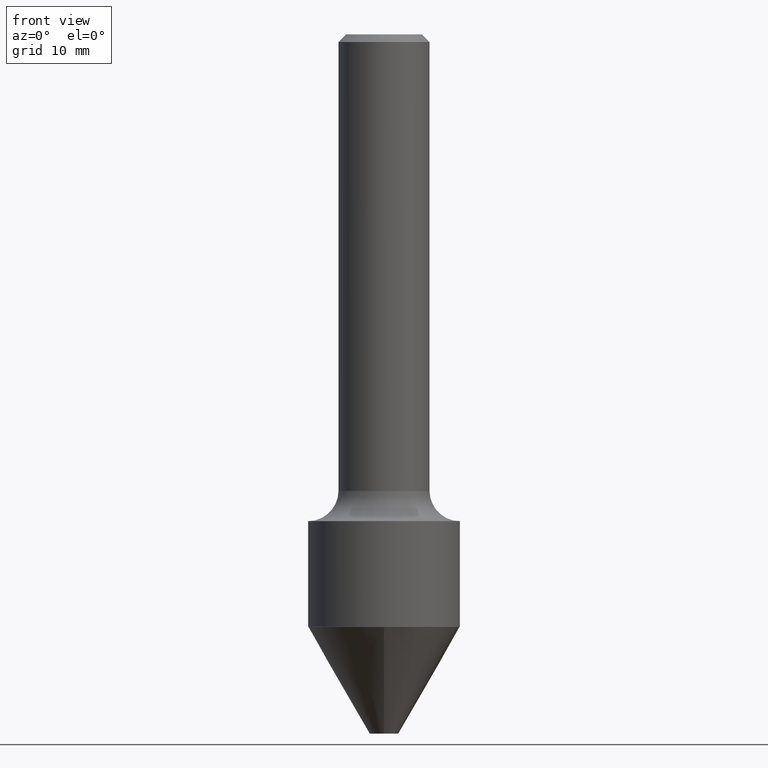
[diagram: clean part render]
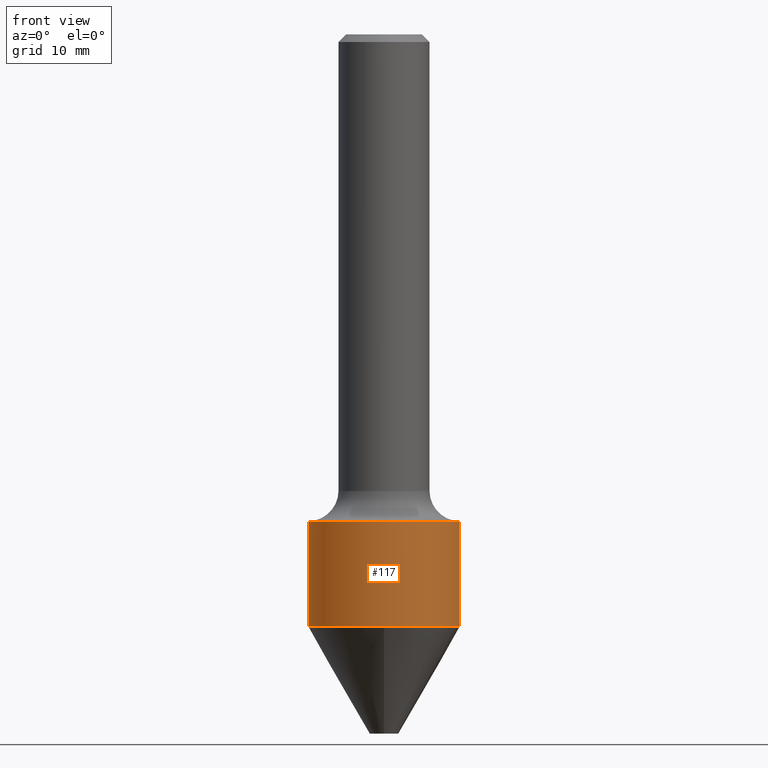
[diagram: same view with one face highlighted and labeled with its STEP entity id]
A machine part, front view. The second image highlights one B-rep face of the part: STEP entity #117.
In plain terms, the highlighted cylindrical surface (partial cylindrical patch) has radius 7.9375 mm, axis along (-0, 0, 1).
Its self-contained STEP definition (entity closure, byte-faithful):
#11 = EDGE_LOOP ( 'NONE', ( #323, #367, #172, #216 ) ) ;
#20 = VECTOR ( 'NONE', #169, 39.37007874015748143 ) ;
#23 = CARTESIAN_POINT ( 'NONE',  ( 0.000000000000000000, 0.000000000000000000, 0.000000000000000000 ) ) ;
#64 = DIRECTION ( 'NONE',  ( -2.445468806185136597E-29, 3.491481338843145583E-15, 1.000000000000000000 ) ) ;
#75 = AXIS2_PLACEMENT_3D ( 'NONE', #23, #182, #137 ) ;
#106 = DIRECTION ( 'NONE',  ( 1.000000000000000000, -6.982962677686265133E-15, 0.000000000000000000 ) ) ;
#108 = DIRECTION ( 'NONE',  ( -2.445468806185136597E-29, 3.491481338843145583E-15, 1.000000000000000000 ) ) ;
#112 = EDGE_CURVE ( 'NONE', #398, #362, #343, .T. ) ;
#117 = ADVANCED_FACE ( 'NONE', ( #378 ), #418, .T. ) ;
#120 = CARTESIAN_POINT ( 'NONE',  ( 0.3125000000000000000, -1.070112886241384003E-14, -2.439925120281329907 ) ) ;
#133 = AXIS2_PLACEMENT_3D ( 'NONE', #150, #64, #381 ) ;
#137 = DIRECTION ( 'NONE',  ( 1.000000000000000000, -6.982962677686266711E-15, 4.876176775795936353E-29 ) ) ;
#150 = CARTESIAN_POINT ( 'NONE',  ( 4.903164956401198966E-29, -7.000420084380507779E-15, -2.004999999999999893 ) ) ;
#163 = CARTESIAN_POINT ( 'NONE',  ( -0.3125000000000000000, -4.779974035130193909E-15, -2.004999999999999893 ) ) ;
#166 = CARTESIAN_POINT ( 'NONE',  ( 0.3125000000000000000, -2.182175836776958347E-15, 1.523805242436230075E-29 ) ) ;
#169 = DIRECTION ( 'NONE',  ( -2.445468806185136877E-29, 3.491481338843145188E-15, 1.000000000000000000 ) ) ;
#172 = ORIENTED_EDGE ( 'NONE', *, *, #358, .T. ) ;
#182 = DIRECTION ( 'NONE',  ( -2.445468806185136597E-29, 3.491481338843145583E-15, 1.000000000000000000 ) ) ;
#191 = LINE ( 'NONE', #357, #472 ) ;
#202 = EDGE_CURVE ( 'NONE', #493, #398, #191, .T. ) ;
#211 = LINE ( 'NONE', #166, #20 ) ;
#214 = EDGE_CURVE ( 'NONE', #493, #403, #341, .T. ) ;
#216 = ORIENTED_EDGE ( 'NONE', *, *, #112, .F. ) ;
#234 = AXIS2_PLACEMENT_3D ( 'NONE', #438, #108, #106 ) ;
#323 = ORIENTED_EDGE ( 'NONE', *, *, #202, .F. ) ;
#341 = CIRCLE ( 'NONE', #234, 0.3125000000000000000 ) ;
#343 = CIRCLE ( 'NONE', #133, 0.3125000000000000000 ) ;
#357 = CARTESIAN_POINT ( 'NONE',  ( -0.3125000000000000000, 2.220446049250313081E-15, -1.537167215704658232E-29 ) ) ;
#358 = EDGE_CURVE ( 'NONE', #403, #362, #211, .T. ) ;
#362 = VERTEX_POINT ( 'NONE', #481 ) ;
#367 = ORIENTED_EDGE ( 'NONE', *, *, #214, .T. ) ;
#378 = FACE_OUTER_BOUND ( 'NONE', #11, .T. ) ;
#381 = DIRECTION ( 'NONE',  ( 1.000000000000000000, -6.982962677686269077E-15, 0.000000000000000000 ) ) ;
#385 = CARTESIAN_POINT ( 'NONE',  ( -0.3125000000000000000, -5.539240505758381256E-15, -2.439925120281329907 ) ) ;
#398 = VERTEX_POINT ( 'NONE', #163 ) ;
#403 = VERTEX_POINT ( 'NONE', #120 ) ;
#418 = CYLINDRICAL_SURFACE ( 'NONE', #75, 0.3125000000000000000 ) ;
#438 = CARTESIAN_POINT ( 'NONE',  ( 5.966760771075509629E-29, -8.518953025636881685E-15, -2.439925120281329907 ) ) ;
#472 = VECTOR ( 'NONE', #512, 39.37007874015748143 ) ;
#481 = CARTESIAN_POINT ( 'NONE',  ( 0.3125000000000000000, -9.182595921157466915E-15, -2.004999999999999893 ) ) ;
#493 = VERTEX_POINT ( 'NONE', #385 ) ;
#512 = DIRECTION ( 'NONE',  ( -2.445468806185136877E-29, 3.491481338843145188E-15, 1.000000000000000000 ) ) ;